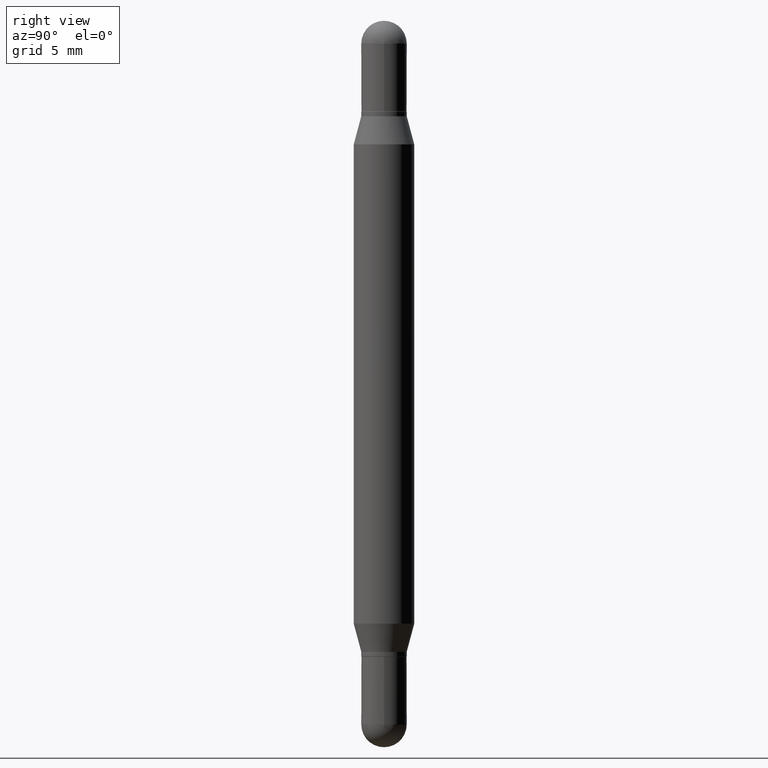
[diagram: clean part render]
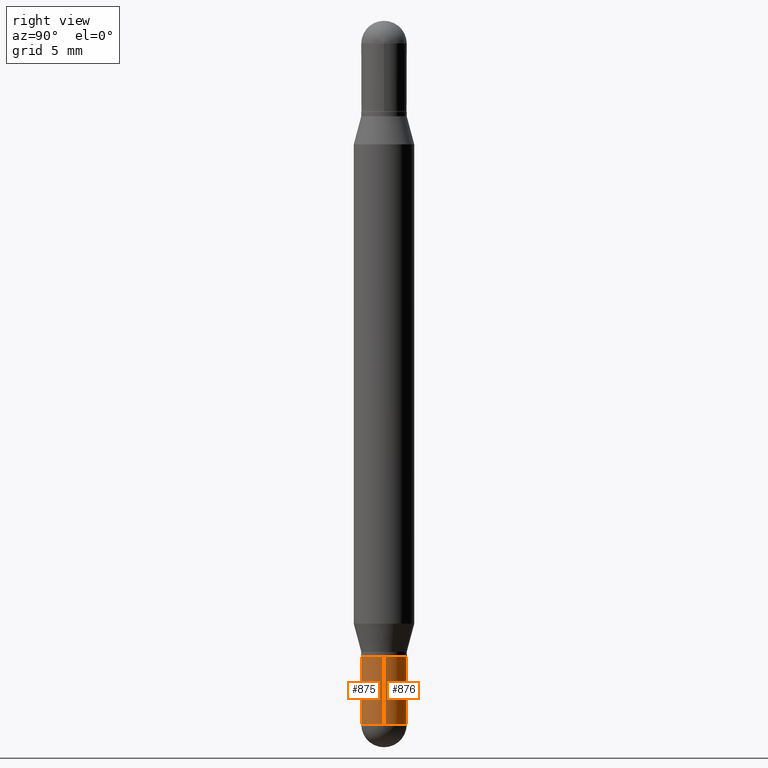
[diagram: same view with one multi-face feature highlighted, each face labeled with its STEP entity id]
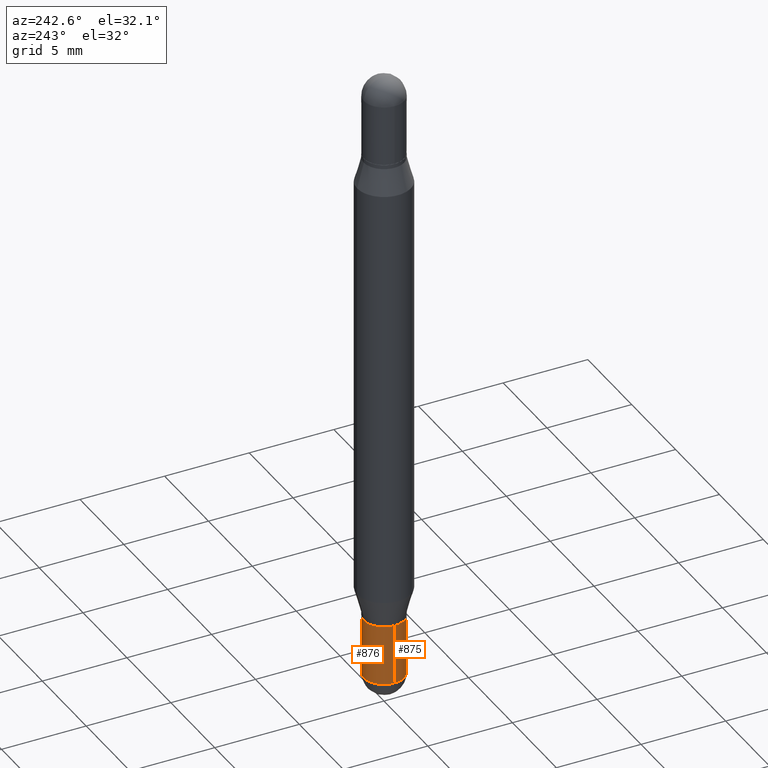
[diagram: same view with one multi-face feature highlighted, each face labeled with its STEP entity id]
A machine part, right view. The highlighted faces form ONE feature: a constant-radius fillet chain: 2 tangent blend faces with common blend radius 1.1913 mm. The faces share edges in the B-rep.
A second angle (auxiliary view) of the same feature is appended — it is thin or edge-on in the first view.
Their STEP definitions:
[1] entity #876 (Cylinder):
#14 = DIRECTION ( 'NONE',  ( 1.000000000000000000, -6.982962677686277755E-15, 0.000000000000000000 ) ) ;
#26 = AXIS2_PLACEMENT_3D ( 'NONE', #68, #425, #1086 ) ;
#68 = CARTESIAN_POINT ( 'NONE',  ( 3.553510722267622201E-29, -5.073471533472974042E-15, -1.453099999999999836 ) ) ;
#85 = ORIENTED_EDGE ( 'NONE', *, *, #557, .T. ) ;
#90 = CARTESIAN_POINT ( 'NONE',  ( 0.04689999999999999725, -4.911815947484537290E-15, -1.313000000000000167 ) ) ;
#103 = DIRECTION ( 'NONE',  ( 1.000000000000000000, -6.982962677686266711E-15, 4.876176775795936353E-29 ) ) ;
#163 = CARTESIAN_POINT ( 'NONE',  ( 0.04689999999999999725, -5.156394215270499012E-15, -1.453099999999999836 ) ) ;
#164 = CARTESIAN_POINT ( 'NONE',  ( -0.04689999999999999725, -4.495648722615525747E-15, -1.453099999999999836 ) ) ;
#171 = ORIENTED_EDGE ( 'NONE', *, *, #704, .T. ) ;
#217 = CARTESIAN_POINT ( 'NONE',  ( 3.332445430715229101E-16, 0.04689999999999499430, -1.453100000000000058 ) ) ;
#224 = CIRCLE ( 'NONE', #26, 0.04689999999999999725 ) ;
#243 = AXIS2_PLACEMENT_3D ( 'NONE', #449, #535, #14 ) ;
#246 = LINE ( 'NONE', #931, #259 ) ;
#259 = VECTOR ( 'NONE', #838, 39.37007874015748143 ) ;
#260 = DIRECTION ( 'NONE',  ( -2.445468806185136877E-29, 3.491481338843145188E-15, 1.000000000000000000 ) ) ;
#266 = VECTOR ( 'NONE', #260, 39.37007874015748143 ) ;
#294 = ORIENTED_EDGE ( 'NONE', *, *, #1109, .F. ) ;
#355 = CARTESIAN_POINT ( 'NONE',  ( 0.000000000000000000, 0.000000000000000000, 0.000000000000000000 ) ) ;
#370 = CIRCLE ( 'NONE', #689, 0.04689999999999999725 ) ;
#377 = ORIENTED_EDGE ( 'NONE', *, *, #764, .T. ) ;
#409 = DIRECTION ( 'NONE',  ( 1.000000000000000000, -6.982962677686277755E-15, 0.000000000000000000 ) ) ;
#425 = DIRECTION ( 'NONE',  ( -2.445468806185136597E-29, 3.491481338843145583E-15, 1.000000000000000000 ) ) ;
#426 = CARTESIAN_POINT ( 'NONE',  ( 3.553510722267622201E-29, -5.073471533472974042E-15, -1.453099999999999836 ) ) ;
#430 = CARTESIAN_POINT ( 'NONE',  ( -0.04689999999999999725, -4.495648722615525747E-15, -1.313000000000000167 ) ) ;
#449 = CARTESIAN_POINT ( 'NONE',  ( 3.210900542521084585E-29, -4.584314997901050598E-15, -1.313000000000000167 ) ) ;
#464 = VERTEX_POINT ( 'NONE', #217 ) ;
#535 = DIRECTION ( 'NONE',  ( -2.445468806185136597E-29, 3.491481338843145583E-15, 1.000000000000000000 ) ) ;
#557 = EDGE_CURVE ( 'NONE', #464, #742, #370, .T. ) ;
#612 = FACE_OUTER_BOUND ( 'NONE', #982, .T. ) ;
#677 = ORIENTED_EDGE ( 'NONE', *, *, #910, .F. ) ;
#689 = AXIS2_PLACEMENT_3D ( 'NONE', #426, #769, #409 ) ;
#704 = EDGE_CURVE ( 'NONE', #1078, #464, #224, .T. ) ;
#742 = VERTEX_POINT ( 'NONE', #164 ) ;
#764 = EDGE_CURVE ( 'NONE', #742, #864, #779, .T. ) ;
#769 = DIRECTION ( 'NONE',  ( -2.445468806185136597E-29, 3.491481338843145583E-15, 1.000000000000000000 ) ) ;
#779 = LINE ( 'NONE', #874, #266 ) ;
#783 = AXIS2_PLACEMENT_3D ( 'NONE', #355, #1030, #103 ) ;
#789 = VERTEX_POINT ( 'NONE', #90 ) ;
#838 = DIRECTION ( 'NONE',  ( -2.445468806185136877E-29, 3.491481338843145188E-15, 1.000000000000000000 ) ) ;
#864 = VERTEX_POINT ( 'NONE', #430 ) ;
#874 = CARTESIAN_POINT ( 'NONE',  ( -0.04689999999999999725, 3.332445430714869676E-16, -2.306980557329550952E-30 ) ) ;
#876 = ADVANCED_FACE ( 'NONE', ( #612 ), #952, .T. ) ;
#910 = EDGE_CURVE ( 'NONE', #789, #864, #981, .T. ) ;
#931 = CARTESIAN_POINT ( 'NONE',  ( 0.04689999999999999725, -3.275009495834859024E-16, 2.286926907848294038E-30 ) ) ;
#952 = CYLINDRICAL_SURFACE ( 'NONE', #783, 0.04689999999999999725 ) ;
#981 = CIRCLE ( 'NONE', #243, 0.04689999999999999725 ) ;
#982 = EDGE_LOOP ( 'NONE', ( #85, #377, #677, #294, #171 ) ) ;
#1030 = DIRECTION ( 'NONE',  ( -2.445468806185136597E-29, 3.491481338843145583E-15, 1.000000000000000000 ) ) ;
#1078 = VERTEX_POINT ( 'NONE', #163 ) ;
#1086 = DIRECTION ( 'NONE',  ( 1.000000000000000000, -6.982962677686277755E-15, 0.000000000000000000 ) ) ;
#1109 = EDGE_CURVE ( 'NONE', #1078, #789, #246, .T. ) ;
[2] entity #875 (Cylinder):
#90 = CARTESIAN_POINT ( 'NONE',  ( 0.04689999999999999725, -4.911815947484537290E-15, -1.313000000000000167 ) ) ;
#147 = AXIS2_PLACEMENT_3D ( 'NONE', #948, #782, #184 ) ;
#150 = AXIS2_PLACEMENT_3D ( 'NONE', #369, #1036, #196 ) ;
#163 = CARTESIAN_POINT ( 'NONE',  ( 0.04689999999999999725, -5.156394215270499012E-15, -1.453099999999999836 ) ) ;
#164 = CARTESIAN_POINT ( 'NONE',  ( -0.04689999999999999725, -4.495648722615525747E-15, -1.453099999999999836 ) ) ;
#184 = DIRECTION ( 'NONE',  ( 1.000000000000000000, -6.982962677686277755E-15, 0.000000000000000000 ) ) ;
#196 = DIRECTION ( 'NONE',  ( 1.000000000000000000, -6.982962677686266711E-15, 4.876176775795936353E-29 ) ) ;
#214 = CARTESIAN_POINT ( 'NONE',  ( -3.275009495834508474E-16, -0.04690000000000513897, -1.453099999999999614 ) ) ;
#219 = CIRCLE ( 'NONE', #277, 0.04689999999999999725 ) ;
#246 = LINE ( 'NONE', #931, #259 ) ;
#259 = VECTOR ( 'NONE', #838, 39.37007874015748143 ) ;
#260 = DIRECTION ( 'NONE',  ( -2.445468806185136877E-29, 3.491481338843145188E-15, 1.000000000000000000 ) ) ;
#266 = VECTOR ( 'NONE', #260, 39.37007874015748143 ) ;
#277 = AXIS2_PLACEMENT_3D ( 'NONE', #815, #819, #287 ) ;
#287 = DIRECTION ( 'NONE',  ( 1.000000000000000000, -6.982962677686277755E-15, 0.000000000000000000 ) ) ;
#293 = ORIENTED_EDGE ( 'NONE', *, *, #342, .T. ) ;
#342 = EDGE_CURVE ( 'NONE', #473, #1078, #421, .T. ) ;
#347 = CYLINDRICAL_SURFACE ( 'NONE', #150, 0.04689999999999999725 ) ;
#369 = CARTESIAN_POINT ( 'NONE',  ( 0.000000000000000000, 0.000000000000000000, 0.000000000000000000 ) ) ;
#421 = CIRCLE ( 'NONE', #147, 0.04689999999999999725 ) ;
#430 = CARTESIAN_POINT ( 'NONE',  ( -0.04689999999999999725, -4.495648722615525747E-15, -1.313000000000000167 ) ) ;
#473 = VERTEX_POINT ( 'NONE', #214 ) ;
#498 = DIRECTION ( 'NONE',  ( 1.000000000000000000, -6.982962677686277755E-15, 0.000000000000000000 ) ) ;
#599 = ORIENTED_EDGE ( 'NONE', *, *, #1029, .F. ) ;
#629 = ORIENTED_EDGE ( 'NONE', *, *, #1109, .T. ) ;
#667 = CARTESIAN_POINT ( 'NONE',  ( 3.553510722267622201E-29, -5.073471533472974042E-15, -1.453099999999999836 ) ) ;
#675 = EDGE_CURVE ( 'NONE', #742, #473, #798, .T. ) ;
#742 = VERTEX_POINT ( 'NONE', #164 ) ;
#764 = EDGE_CURVE ( 'NONE', #742, #864, #779, .T. ) ;
#772 = FACE_OUTER_BOUND ( 'NONE', #930, .T. ) ;
#779 = LINE ( 'NONE', #874, #266 ) ;
#782 = DIRECTION ( 'NONE',  ( -2.445468806185136597E-29, 3.491481338843145583E-15, 1.000000000000000000 ) ) ;
#789 = VERTEX_POINT ( 'NONE', #90 ) ;
#798 = CIRCLE ( 'NONE', #979, 0.04689999999999999725 ) ;
#815 = CARTESIAN_POINT ( 'NONE',  ( 3.210900542521084585E-29, -4.584314997901050598E-15, -1.313000000000000167 ) ) ;
#819 = DIRECTION ( 'NONE',  ( -2.445468806185136597E-29, 3.491481338843145583E-15, 1.000000000000000000 ) ) ;
#838 = DIRECTION ( 'NONE',  ( -2.445468806185136877E-29, 3.491481338843145188E-15, 1.000000000000000000 ) ) ;
#856 = ORIENTED_EDGE ( 'NONE', *, *, #764, .F. ) ;
#864 = VERTEX_POINT ( 'NONE', #430 ) ;
#874 = CARTESIAN_POINT ( 'NONE',  ( -0.04689999999999999725, 3.332445430714869676E-16, -2.306980557329550952E-30 ) ) ;
#875 = ADVANCED_FACE ( 'NONE', ( #772 ), #347, .T. ) ;
#930 = EDGE_LOOP ( 'NONE', ( #856, #969, #293, #629, #599 ) ) ;
#931 = CARTESIAN_POINT ( 'NONE',  ( 0.04689999999999999725, -3.275009495834859024E-16, 2.286926907848294038E-30 ) ) ;
#948 = CARTESIAN_POINT ( 'NONE',  ( 3.553510722267622201E-29, -5.073471533472974042E-15, -1.453099999999999836 ) ) ;
#969 = ORIENTED_EDGE ( 'NONE', *, *, #675, .T. ) ;
#979 = AXIS2_PLACEMENT_3D ( 'NONE', #667, #1024, #498 ) ;
#1024 = DIRECTION ( 'NONE',  ( -2.445468806185136597E-29, 3.491481338843145583E-15, 1.000000000000000000 ) ) ;
#1029 = EDGE_CURVE ( 'NONE', #864, #789, #219, .T. ) ;
#1036 = DIRECTION ( 'NONE',  ( -2.445468806185136597E-29, 3.491481338843145583E-15, 1.000000000000000000 ) ) ;
#1078 = VERTEX_POINT ( 'NONE', #163 ) ;
#1109 = EDGE_CURVE ( 'NONE', #1078, #789, #246, .T. ) ;